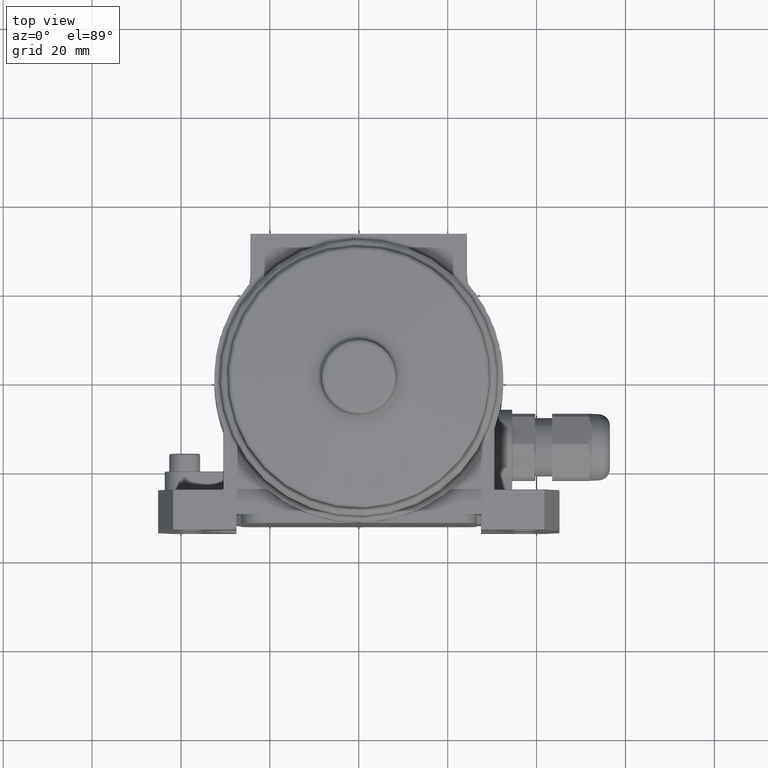
[diagram: clean part render]
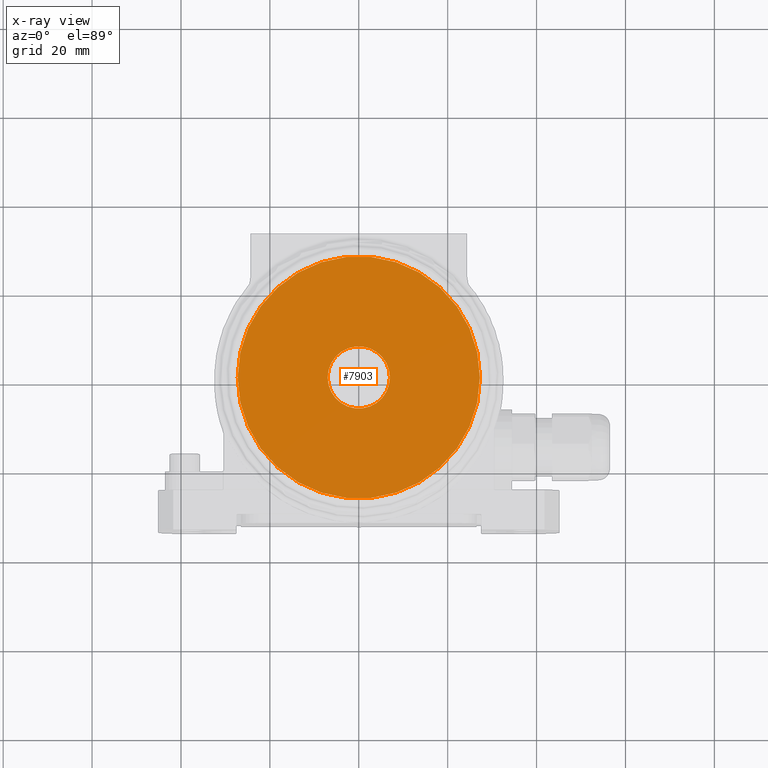
[diagram: x-ray — body ghosted, one internal face saturated and labeled with its STEP entity id]
A machine part, top view, then the same camera in x-ray: the body is ghosted and one INTERNAL B-rep face — a face not visible from any outside direction — is saturated and labeled: STEP entity #7903.
In plain terms, the highlighted planar face has unit normal (0, 0, 1).
Its self-contained STEP definition (entity closure, byte-faithful):
#1868 = ORIENTED_EDGE ( 'NONE', *, *, #16879, .T. ) ;
#2338 = DIRECTION ( 'NONE',  ( 1.000000000000000000, 0.0000000000000000000, 0.0000000000000000000 ) ) ;
#2629 = CIRCLE ( 'NONE', #9880, 7.000000000000000000 ) ;
#3147 = CIRCLE ( 'NONE', #19422, 7.000000000000000000 ) ;
#4110 = ORIENTED_EDGE ( 'NONE', *, *, #16281, .F. ) ;
#4366 = DIRECTION ( 'NONE',  ( 0.0000000000000000000, 0.0000000000000000000, 1.000000000000000000 ) ) ;
#4620 = PLANE ( 'NONE',  #19661 ) ;
#4636 = DIRECTION ( 'NONE',  ( 1.000000000000000000, 0.0000000000000000000, 0.0000000000000000000 ) ) ;
#6196 = EDGE_LOOP ( 'NONE', ( #11412, #4110 ) ) ;
#6382 = AXIS2_PLACEMENT_3D ( 'NONE', #24529, #20532, #11066 ) ;
#7903 = ADVANCED_FACE ( 'NONE', ( #9158, #14318 ), #4620, .T. ) ;
#9158 = FACE_BOUND ( 'NONE', #6196, .T. ) ;
#9351 = DIRECTION ( 'NONE',  ( 1.000000000000000000, 0.0000000000000000000, 0.0000000000000000000 ) ) ;
#9880 = AXIS2_PLACEMENT_3D ( 'NONE', #18404, #22047, #4636 ) ;
#11066 = DIRECTION ( 'NONE',  ( 1.000000000000000000, 0.0000000000000000000, 0.0000000000000000000 ) ) ;
#11309 = ORIENTED_EDGE ( 'NONE', *, *, #14326, .T. ) ;
#11412 = ORIENTED_EDGE ( 'NONE', *, *, #17279, .F. ) ;
#14318 = FACE_OUTER_BOUND ( 'NONE', #22097, .T. ) ;
#14326 = EDGE_CURVE ( 'NONE', #23319, #22696, #21997, .T. ) ;
#14918 = AXIS2_PLACEMENT_3D ( 'NONE', #16848, #20863, #9351 ) ;
#15731 = CARTESIAN_POINT ( 'NONE',  ( 27.25000000000000000, 0.0000000000000000000, 39.50000000000000000 ) ) ;
#15835 = CIRCLE ( 'NONE', #14918, 27.25000000000000000 ) ;
#16281 = EDGE_CURVE ( 'NONE', #24492, #23264, #2629, .T. ) ;
#16848 = CARTESIAN_POINT ( 'NONE',  ( 0.0000000000000000000, 0.0000000000000000000, 39.50000000000000000 ) ) ;
#16879 = EDGE_CURVE ( 'NONE', #22696, #23319, #15835, .T. ) ;
#17279 = EDGE_CURVE ( 'NONE', #23264, #24492, #3147, .T. ) ;
#17403 = CARTESIAN_POINT ( 'NONE',  ( 7.000000000000000000, 0.0000000000000000000, 39.50000000000000000 ) ) ;
#18404 = CARTESIAN_POINT ( 'NONE',  ( 0.0000000000000000000, 0.0000000000000000000, 39.50000000000000000 ) ) ;
#19303 = DIRECTION ( 'NONE',  ( 0.0000000000000000000, 0.0000000000000000000, 1.000000000000000000 ) ) ;
#19422 = AXIS2_PLACEMENT_3D ( 'NONE', #21738, #19303, #21059 ) ;
#19661 = AXIS2_PLACEMENT_3D ( 'NONE', #19748, #4366, #2338 ) ;
#19748 = CARTESIAN_POINT ( 'NONE',  ( 0.0000000000000000000, 0.0000000000000000000, 39.50000000000000000 ) ) ;
#20316 = CARTESIAN_POINT ( 'NONE',  ( -27.25000000000000000, 3.337162527676537500E-015, 39.50000000000000000 ) ) ;
#20532 = DIRECTION ( 'NONE',  ( 0.0000000000000000000, 0.0000000000000000000, 1.000000000000000000 ) ) ;
#20771 = CARTESIAN_POINT ( 'NONE',  ( -7.000000000000000000, 8.572527594031473200E-016, 39.50000000000000000 ) ) ;
#20863 = DIRECTION ( 'NONE',  ( 0.0000000000000000000, 0.0000000000000000000, 1.000000000000000000 ) ) ;
#21059 = DIRECTION ( 'NONE',  ( 1.000000000000000000, 0.0000000000000000000, 0.0000000000000000000 ) ) ;
#21738 = CARTESIAN_POINT ( 'NONE',  ( 0.0000000000000000000, 0.0000000000000000000, 39.50000000000000000 ) ) ;
#21997 = CIRCLE ( 'NONE', #6382, 27.25000000000000000 ) ;
#22047 = DIRECTION ( 'NONE',  ( 0.0000000000000000000, 0.0000000000000000000, 1.000000000000000000 ) ) ;
#22097 = EDGE_LOOP ( 'NONE', ( #11309, #1868 ) ) ;
#22696 = VERTEX_POINT ( 'NONE', #20316 ) ;
#23264 = VERTEX_POINT ( 'NONE', #17403 ) ;
#23319 = VERTEX_POINT ( 'NONE', #15731 ) ;
#24492 = VERTEX_POINT ( 'NONE', #20771 ) ;
#24529 = CARTESIAN_POINT ( 'NONE',  ( 0.0000000000000000000, 0.0000000000000000000, 39.50000000000000000 ) ) ;